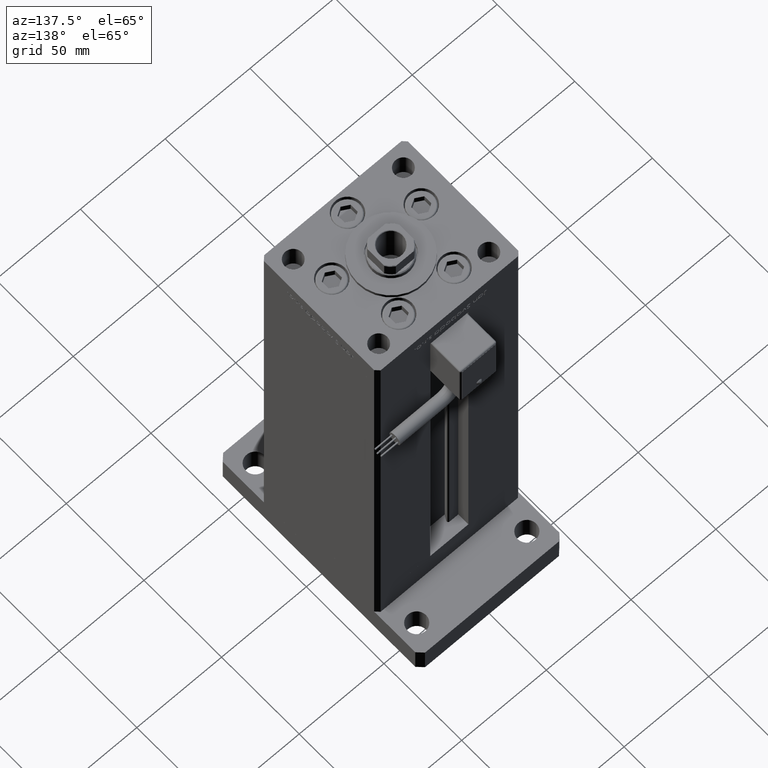
[diagram: clean part render]
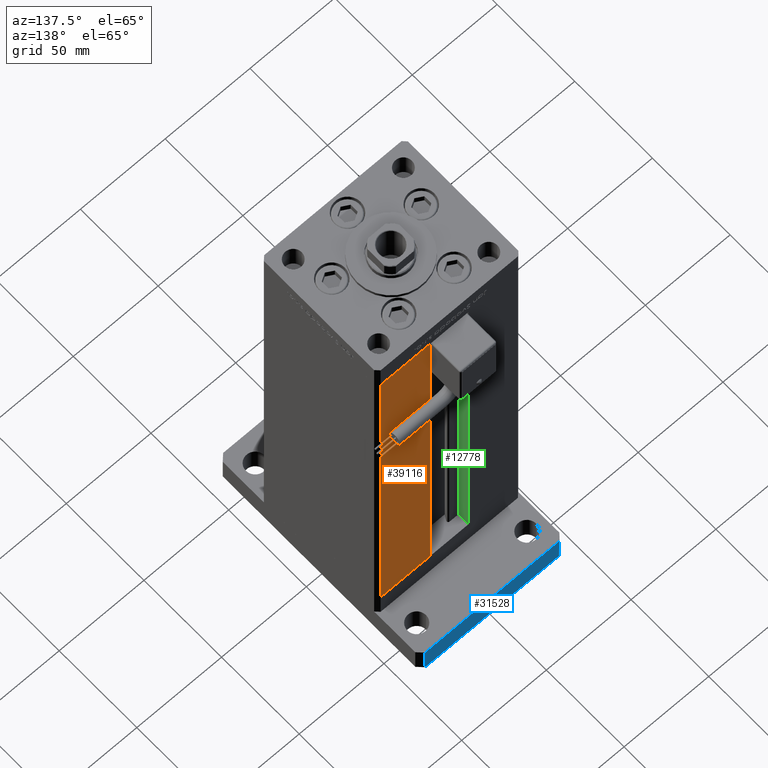
[diagram: same view with three faces highlighted in distinct colors, each labeled with its STEP entity id]
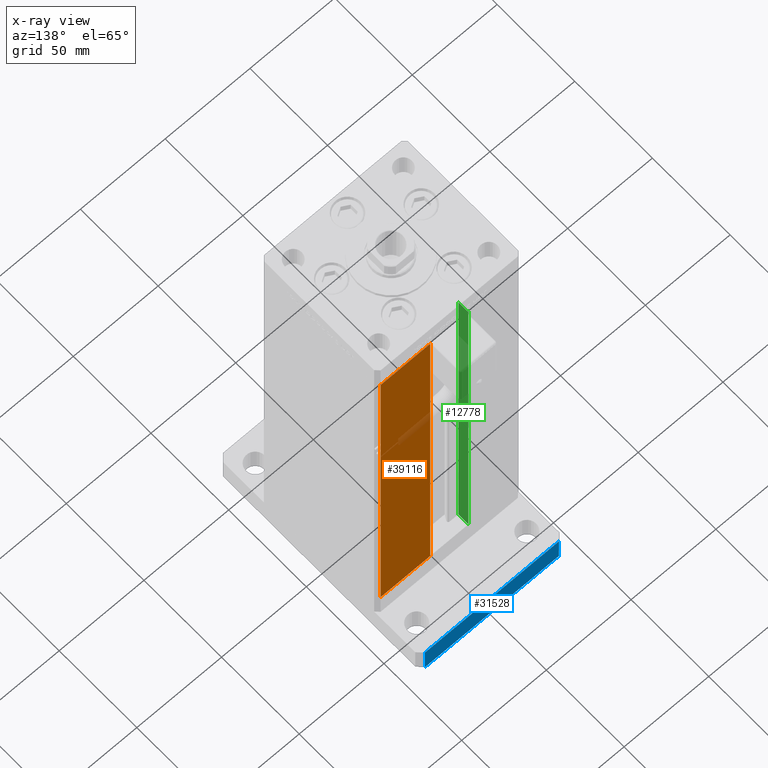
[diagram: x-ray of the same camera — body ghosted, the three highlighted faces saturated]
A machine part, auxiliary view with three faces highlighted in distinct colors.
The next image is the same camera in x-ray (body ghosted, the three faces saturated) — at least one of them is partly hidden behind the body in this view.
Their STEP definitions:

[orange] entity #39116 — the highlighted planar face has unit normal (-0, -1, 0).
#1244 = LINE ( 'NONE', #31414, #12733 ) ;
#2425 = DIRECTION ( 'NONE',  ( 1.000000000000000000, -2.372271420139223824E-16, 0.000000000000000000 ) ) ;
#3498 = VERTEX_POINT ( 'NONE', #8088 ) ;
#6982 = DIRECTION ( 'NONE',  ( -0.000000000000000000, -0.000000000000000000, 1.000000000000000000 ) ) ;
#8088 = CARTESIAN_POINT ( 'NONE',  ( 40.50000000000000000, 37.50000000000000711, 0.000000000000000000 ) ) ;
#9286 = CARTESIAN_POINT ( 'NONE',  ( 11.25000000000000000, 37.50000000000000000, 0.000000000000000000 ) ) ;
#10689 = FACE_OUTER_BOUND ( 'NONE', #25549, .T. ) ;
#11007 = LINE ( 'NONE', #27812, #12916 ) ;
#12733 = VECTOR ( 'NONE', #18618, 1000.000000000000000 ) ;
#12916 = VECTOR ( 'NONE', #28363, 1000.000000000000000 ) ;
#13043 = EDGE_CURVE ( 'NONE', #21138, #26971, #33898, .T. ) ;
#14916 = ORIENTED_EDGE ( 'NONE', *, *, #51636, .T. ) ;
#15235 = PLANE ( 'NONE',  #41217 ) ;
#18378 = ORIENTED_EDGE ( 'NONE', *, *, #35970, .T. ) ;
#18618 = DIRECTION ( 'NONE',  ( -1.000000000000000000, 2.372271420139223331E-16, 0.000000000000000000 ) ) ;
#19343 = VECTOR ( 'NONE', #54971, 1000.000000000000000 ) ;
#21138 = VERTEX_POINT ( 'NONE', #50933 ) ;
#21788 = VECTOR ( 'NONE', #6982, 1000.000000000000000 ) ;
#24061 = DIRECTION ( 'NONE',  ( -2.372271420139223824E-16, -1.000000000000000000, 0.000000000000000000 ) ) ;
#25549 = EDGE_LOOP ( 'NONE', ( #33288, #14916, #26024, #18378 ) ) ;
#26024 = ORIENTED_EDGE ( 'NONE', *, *, #13043, .T. ) ;
#26971 = VERTEX_POINT ( 'NONE', #37364 ) ;
#27812 = CARTESIAN_POINT ( 'NONE',  ( 40.50000000000000000, 37.50000000000000711, 218.5000000000000000 ) ) ;
#28363 = DIRECTION ( 'NONE',  ( -0.000000000000000000, -0.000000000000000000, -1.000000000000000000 ) ) ;
#31414 = CARTESIAN_POINT ( 'NONE',  ( -11.25000000000000000, 37.50000000000000000, 0.000000000000000000 ) ) ;
#32578 = CARTESIAN_POINT ( 'NONE',  ( -11.25000000000000000, 37.50000000000000000, 218.5000000000000000 ) ) ;
#33288 = ORIENTED_EDGE ( 'NONE', *, *, #51843, .T. ) ;
#33898 = LINE ( 'NONE', #51528, #19343 ) ;
#35970 = EDGE_CURVE ( 'NONE', #26971, #3498, #11007, .T. ) ;
#37364 = CARTESIAN_POINT ( 'NONE',  ( 40.50000000000000000, 37.50000000000000711, 218.5000000000000000 ) ) ;
#39116 = ADVANCED_FACE ( 'NONE', ( #10689 ), #15235, .F. ) ;
#41217 = AXIS2_PLACEMENT_3D ( 'NONE', #32578, #24061, #2425 ) ;
#45981 = LINE ( 'NONE', #53946, #21788 ) ;
#50933 = CARTESIAN_POINT ( 'NONE',  ( 11.24999999999999289, 37.50000000000000000, 218.5000000000000000 ) ) ;
#51523 = VERTEX_POINT ( 'NONE', #9286 ) ;
#51528 = CARTESIAN_POINT ( 'NONE',  ( -11.25000000000000000, 37.50000000000000000, 218.5000000000000000 ) ) ;
#51636 = EDGE_CURVE ( 'NONE', #51523, #21138, #45981, .T. ) ;
#51843 = EDGE_CURVE ( 'NONE', #3498, #51523, #1244, .T. ) ;
#53946 = CARTESIAN_POINT ( 'NONE',  ( 11.25000000000000000, 37.50000000000000000, 0.000000000000000000 ) ) ;
#54971 = DIRECTION ( 'NONE',  ( 1.000000000000000000, 0.000000000000000000, 0.000000000000000000 ) ) ;

[blue] entity #31528 — the highlighted planar face has unit normal (0, -1, 0).
#15 = LINE ( 'NONE', #4558, #3098 ) ;
#1588 = CARTESIAN_POINT ( 'NONE',  ( 39.50000000000002842, 65.00000000000002842, 15.00000000000000000 ) ) ;
#2261 = VECTOR ( 'NONE', #26152, 1000.000000000000000 ) ;
#2418 = EDGE_CURVE ( 'NONE', #54173, #35542, #5288, .T. ) ;
#3098 = VECTOR ( 'NONE', #21925, 1000.000000000000000 ) ;
#4019 = VECTOR ( 'NONE', #39998, 1000.000000000000000 ) ;
#4558 = CARTESIAN_POINT ( 'NONE',  ( 39.50000000000002842, 65.00000000000002842, 0.000000000000000000 ) ) ;
#5288 = LINE ( 'NONE', #10688, #4019 ) ;
#6416 = FACE_OUTER_BOUND ( 'NONE', #51844, .T. ) ;
#6785 = ORIENTED_EDGE ( 'NONE', *, *, #16186, .T. ) ;
#8632 = CARTESIAN_POINT ( 'NONE',  ( -39.50000000000003553, 65.00000000000000000, 0.000000000000000000 ) ) ;
#9714 = DIRECTION ( 'NONE',  ( -0.000000000000000000, -0.000000000000000000, -1.000000000000000000 ) ) ;
#10578 = VERTEX_POINT ( 'NONE', #8632 ) ;
#10688 = CARTESIAN_POINT ( 'NONE',  ( 39.50000000000002842, 65.00000000000002842, 15.00000000000000000 ) ) ;
#15308 = CARTESIAN_POINT ( 'NONE',  ( 39.50000000000002842, 65.00000000000002842, 0.000000000000000000 ) ) ;
#16186 = EDGE_CURVE ( 'NONE', #35542, #10578, #15, .T. ) ;
#18225 = AXIS2_PLACEMENT_3D ( 'NONE', #1588, #23780, #35745 ) ;
#21925 = DIRECTION ( 'NONE',  ( -1.000000000000000000, -3.513364001978340512E-16, 0.000000000000000000 ) ) ;
#23322 = ORIENTED_EDGE ( 'NONE', *, *, #40344, .F. ) ;
#23780 = DIRECTION ( 'NONE',  ( 3.513364001978341005E-16, -1.000000000000000000, 0.000000000000000000 ) ) ;
#24314 = ORIENTED_EDGE ( 'NONE', *, *, #45995, .F. ) ;
#26152 = DIRECTION ( 'NONE',  ( -1.000000000000000000, -3.513364001978340512E-16, 0.000000000000000000 ) ) ;
#28297 = ORIENTED_EDGE ( 'NONE', *, *, #2418, .T. ) ;
#30581 = VERTEX_POINT ( 'NONE', #47484 ) ;
#31528 = ADVANCED_FACE ( 'NONE', ( #6416 ), #53097, .F. ) ;
#34006 = VECTOR ( 'NONE', #9714, 1000.000000000000000 ) ;
#35331 = LINE ( 'NONE', #40158, #34006 ) ;
#35542 = VERTEX_POINT ( 'NONE', #15308 ) ;
#35745 = DIRECTION ( 'NONE',  ( 1.000000000000000000, 3.513364001978341005E-16, 0.000000000000000000 ) ) ;
#39998 = DIRECTION ( 'NONE',  ( -0.000000000000000000, -0.000000000000000000, -1.000000000000000000 ) ) ;
#40158 = CARTESIAN_POINT ( 'NONE',  ( -39.50000000000003553, 65.00000000000000000, 15.00000000000000000 ) ) ;
#40344 = EDGE_CURVE ( 'NONE', #30581, #10578, #35331, .T. ) ;
#43827 = CARTESIAN_POINT ( 'NONE',  ( 39.50000000000002842, 65.00000000000002842, 15.00000000000000000 ) ) ;
#45995 = EDGE_CURVE ( 'NONE', #54173, #30581, #51504, .T. ) ;
#47484 = CARTESIAN_POINT ( 'NONE',  ( -39.50000000000003553, 65.00000000000000000, 15.00000000000000000 ) ) ;
#51504 = LINE ( 'NONE', #51774, #2261 ) ;
#51774 = CARTESIAN_POINT ( 'NONE',  ( 39.50000000000002842, 65.00000000000002842, 15.00000000000000000 ) ) ;
#51844 = EDGE_LOOP ( 'NONE', ( #6785, #23322, #24314, #28297 ) ) ;
#53097 = PLANE ( 'NONE',  #18225 ) ;
#54173 = VERTEX_POINT ( 'NONE', #43827 ) ;

[green] entity #12778 — the highlighted planar face has unit normal (-1, 0, 0).
#917 = VERTEX_POINT ( 'NONE', #27320 ) ;
#1614 = CARTESIAN_POINT ( 'NONE',  ( -11.25000000000000000, 30.99999999999999289, 0.000000000000000000 ) ) ;
#2461 = CARTESIAN_POINT ( 'NONE',  ( -11.25000000000000000, 30.99999999999999289, 0.000000000000000000 ) ) ;
#2739 = FACE_OUTER_BOUND ( 'NONE', #50135, .T. ) ;
#7124 = CARTESIAN_POINT ( 'NONE',  ( -11.25000000000000000, 37.50000000000000000, 218.5000000000000000 ) ) ;
#8065 = DIRECTION ( 'NONE',  ( -0.000000000000000000, -0.000000000000000000, 1.000000000000000000 ) ) ;
#11818 = VECTOR ( 'NONE', #8065, 1000.000000000000000 ) ;
#12778 = ADVANCED_FACE ( 'NONE', ( #2739 ), #28356, .F. ) ;
#14496 = DIRECTION ( 'NONE',  ( -0.000000000000000000, -1.000000000000000000, -0.000000000000000000 ) ) ;
#15255 = LINE ( 'NONE', #41436, #43645 ) ;
#17709 = ORIENTED_EDGE ( 'NONE', *, *, #24079, .F. ) ;
#24079 = EDGE_CURVE ( 'NONE', #46438, #49105, #40393, .T. ) ;
#24858 = CARTESIAN_POINT ( 'NONE',  ( -11.25000000000000000, 37.50000000000000000, 0.000000000000000000 ) ) ;
#25466 = VECTOR ( 'NONE', #39763, 1000.000000000000000 ) ;
#26674 = CARTESIAN_POINT ( 'NONE',  ( -11.25000000000000000, 0.000000000000000000, 218.5000000000000000 ) ) ;
#27320 = CARTESIAN_POINT ( 'NONE',  ( -11.25000000000000000, 30.99999999999999289, 218.5000000000000000 ) ) ;
#28356 = PLANE ( 'NONE',  #47482 ) ;
#29347 = EDGE_CURVE ( 'NONE', #46438, #45046, #55597, .T. ) ;
#30117 = EDGE_CURVE ( 'NONE', #917, #45046, #48295, .T. ) ;
#33975 = DIRECTION ( 'NONE',  ( 0.000000000000000000, 0.000000000000000000, 1.000000000000000000 ) ) ;
#39188 = ORIENTED_EDGE ( 'NONE', *, *, #49098, .F. ) ;
#39763 = DIRECTION ( 'NONE',  ( 0.000000000000000000, 1.000000000000000000, 0.000000000000000000 ) ) ;
#40393 = LINE ( 'NONE', #53473, #42654 ) ;
#40682 = ORIENTED_EDGE ( 'NONE', *, *, #29347, .T. ) ;
#41147 = DIRECTION ( 'NONE',  ( -0.000000000000000000, -0.000000000000000000, 1.000000000000000000 ) ) ;
#41436 = CARTESIAN_POINT ( 'NONE',  ( -11.25000000000000000, 30.99999999999999289, 0.000000000000000000 ) ) ;
#42654 = VECTOR ( 'NONE', #14496, 1000.000000000000000 ) ;
#43645 = VECTOR ( 'NONE', #41147, 1000.000000000000000 ) ;
#45046 = VERTEX_POINT ( 'NONE', #7124 ) ;
#46438 = VERTEX_POINT ( 'NONE', #51169 ) ;
#47060 = DIRECTION ( 'NONE',  ( -1.000000000000000000, 0.000000000000000000, 0.000000000000000000 ) ) ;
#47482 = AXIS2_PLACEMENT_3D ( 'NONE', #2461, #47060, #33975 ) ;
#48295 = LINE ( 'NONE', #26674, #25466 ) ;
#49098 = EDGE_CURVE ( 'NONE', #49105, #917, #15255, .T. ) ;
#49105 = VERTEX_POINT ( 'NONE', #1614 ) ;
#50135 = EDGE_LOOP ( 'NONE', ( #39188, #17709, #40682, #52328 ) ) ;
#51169 = CARTESIAN_POINT ( 'NONE',  ( -11.25000000000000000, 37.50000000000000000, 0.000000000000000000 ) ) ;
#52328 = ORIENTED_EDGE ( 'NONE', *, *, #30117, .F. ) ;
#53473 = CARTESIAN_POINT ( 'NONE',  ( -11.25000000000000000, 30.99999999999999289, 0.000000000000000000 ) ) ;
#55597 = LINE ( 'NONE', #24858, #11818 ) ;